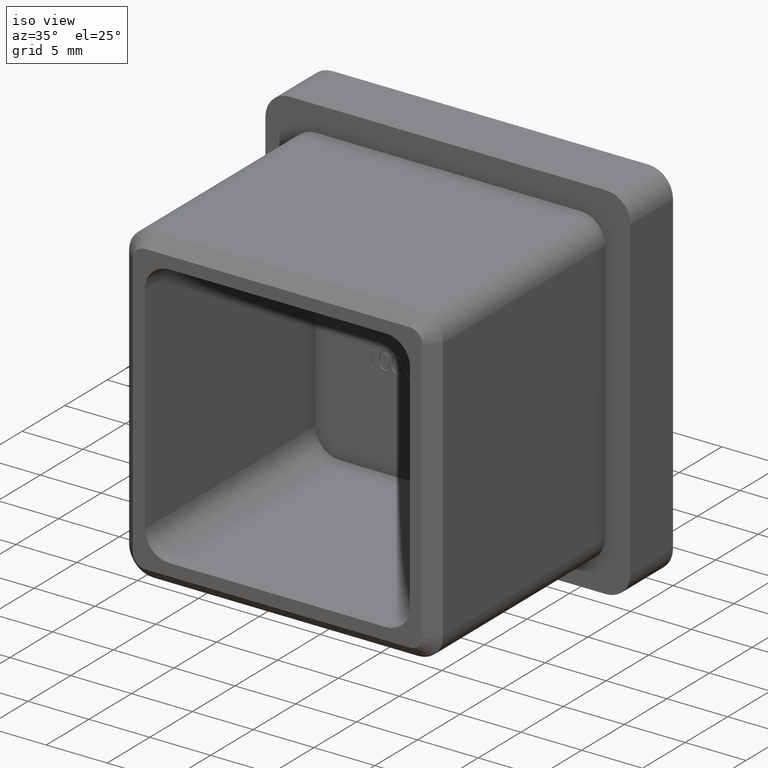
[diagram: clean part render]
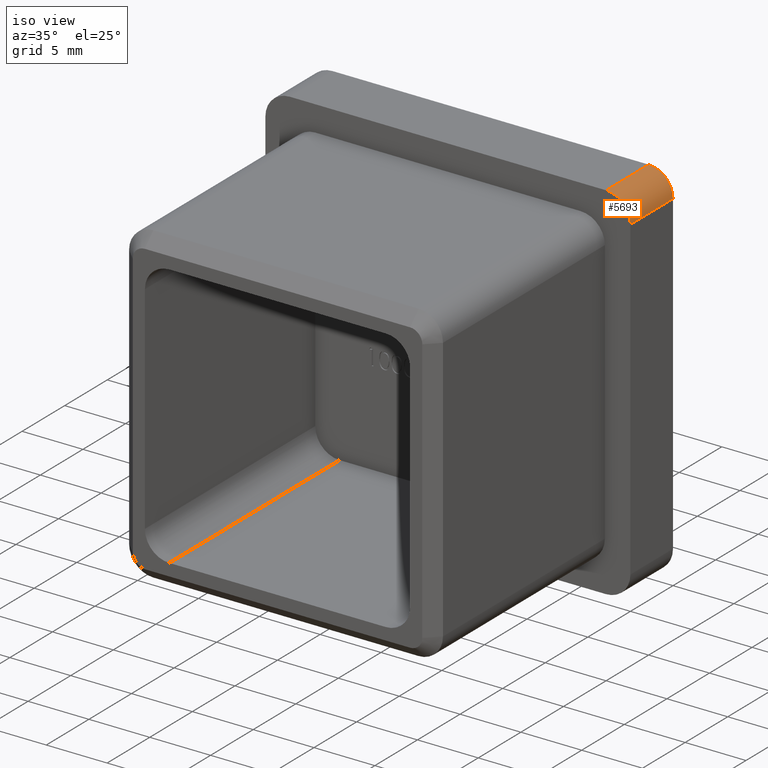
[diagram: same view with one face highlighted and labeled with its STEP entity id]
A machine part, iso view. The second image highlights one B-rep face of the part: STEP entity #5693.
In plain terms, the highlighted cylindrical surface (edge-blend (fillet) strip) has radius 2 mm, axis along (0, -1, 0).
Its self-contained STEP definition (entity closure, byte-faithful):
#443 = DIRECTION ( 'NONE',  ( 0.0000000000000000000, 0.0000000000000000000, -1.000000000000000000 ) ) ;
#1348 = FACE_OUTER_BOUND ( 'NONE', #12930, .T. ) ;
#1750 = DIRECTION ( 'NONE',  ( 0.0000000000000000000, 0.0000000000000000000, 1.000000000000000000 ) ) ;
#1972 = VERTEX_POINT ( 'NONE', #8595 ) ;
#2974 = AXIS2_PLACEMENT_3D ( 'NONE', #15378, #11331, #11272 ) ;
#3435 = CYLINDRICAL_SURFACE ( 'NONE', #15022, 2.000000000000000000 ) ;
#3525 = DIRECTION ( 'NONE',  ( -0.0000000000000000000, -1.000000000000000000, -0.0000000000000000000 ) ) ;
#4937 = DIRECTION ( 'NONE',  ( -0.0000000000000000000, 1.000000000000000000, -0.0000000000000000000 ) ) ;
#5324 = ORIENTED_EDGE ( 'NONE', *, *, #15579, .F. ) ;
#5585 = CARTESIAN_POINT ( 'NONE',  ( 15.00000000000000700, 0.0000000000000000000, 13.00000000000000500 ) ) ;
#5637 = LINE ( 'NONE', #17033, #10498 ) ;
#5693 = ADVANCED_FACE ( 'NONE', ( #1348 ), #3435, .T. ) ;
#5931 = EDGE_CURVE ( 'NONE', #16201, #10724, #12874, .T. ) ;
#6120 = AXIS2_PLACEMENT_3D ( 'NONE', #7171, #3525, #1750 ) ;
#6903 = DIRECTION ( 'NONE',  ( 0.0000000000000000000, -1.000000000000000000, 0.0000000000000000000 ) ) ;
#7171 = CARTESIAN_POINT ( 'NONE',  ( 13.00000000000000700, 0.0000000000000000000, 13.00000000000000500 ) ) ;
#7237 = DIRECTION ( 'NONE',  ( 0.0000000000000000000, -1.000000000000000000, 0.0000000000000000000 ) ) ;
#7330 = EDGE_CURVE ( 'NONE', #1972, #16201, #5637, .T. ) ;
#7661 = ORIENTED_EDGE ( 'NONE', *, *, #5931, .F. ) ;
#8595 = CARTESIAN_POINT ( 'NONE',  ( 13.00000000000000700, 0.0000000000000000000, 15.00000000000000700 ) ) ;
#8833 = EDGE_CURVE ( 'NONE', #10724, #10315, #10993, .T. ) ;
#9156 = CIRCLE ( 'NONE', #6120, 2.000000000000000000 ) ;
#9192 = ORIENTED_EDGE ( 'NONE', *, *, #7330, .F. ) ;
#10315 = VERTEX_POINT ( 'NONE', #5585 ) ;
#10498 = VECTOR ( 'NONE', #4937, 1000.000000000000000 ) ;
#10724 = VERTEX_POINT ( 'NONE', #13547 ) ;
#10993 = LINE ( 'NONE', #13633, #16513 ) ;
#11175 = CARTESIAN_POINT ( 'NONE',  ( 13.00000000000000700, 5.000000000000000000, 13.00000000000000500 ) ) ;
#11272 = DIRECTION ( 'NONE',  ( 0.0000000000000000000, 0.0000000000000000000, 1.000000000000000000 ) ) ;
#11331 = DIRECTION ( 'NONE',  ( 0.0000000000000000000, 1.000000000000000000, 0.0000000000000000000 ) ) ;
#11926 = ORIENTED_EDGE ( 'NONE', *, *, #8833, .F. ) ;
#12874 = CIRCLE ( 'NONE', #2974, 2.000000000000000000 ) ;
#12930 = EDGE_LOOP ( 'NONE', ( #7661, #9192, #5324, #11926 ) ) ;
#13547 = CARTESIAN_POINT ( 'NONE',  ( 15.00000000000000700, 5.000000000000000000, 13.00000000000000500 ) ) ;
#13633 = CARTESIAN_POINT ( 'NONE',  ( 15.00000000000000700, 5.000000000000000000, 13.00000000000000500 ) ) ;
#14742 = CARTESIAN_POINT ( 'NONE',  ( 13.00000000000000700, 5.000000000000000000, 15.00000000000000700 ) ) ;
#15022 = AXIS2_PLACEMENT_3D ( 'NONE', #11175, #7237, #443 ) ;
#15378 = CARTESIAN_POINT ( 'NONE',  ( 13.00000000000000700, 5.000000000000000000, 13.00000000000000500 ) ) ;
#15579 = EDGE_CURVE ( 'NONE', #10315, #1972, #9156, .T. ) ;
#16201 = VERTEX_POINT ( 'NONE', #14742 ) ;
#16513 = VECTOR ( 'NONE', #6903, 1000.000000000000000 ) ;
#17033 = CARTESIAN_POINT ( 'NONE',  ( 13.00000000000000700, 5.000000000000000000, 15.00000000000000700 ) ) ;